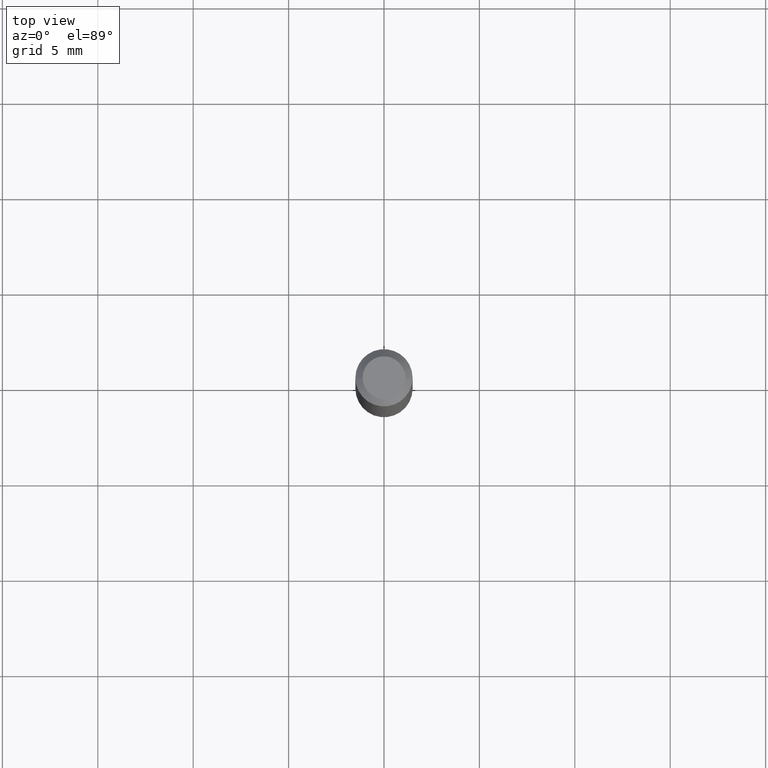
[diagram: clean part render]
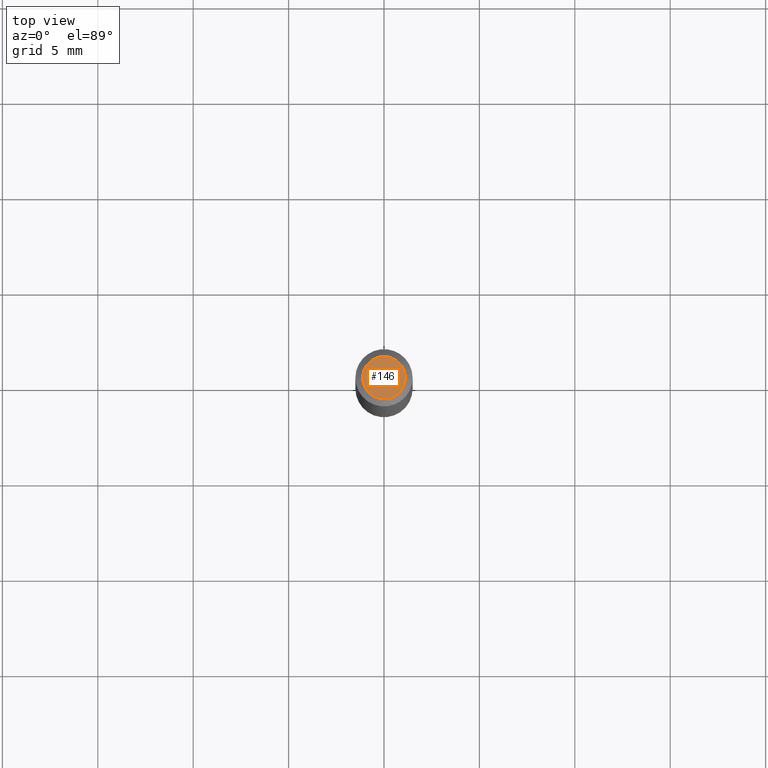
[diagram: same view with one face highlighted and labeled with its STEP entity id]
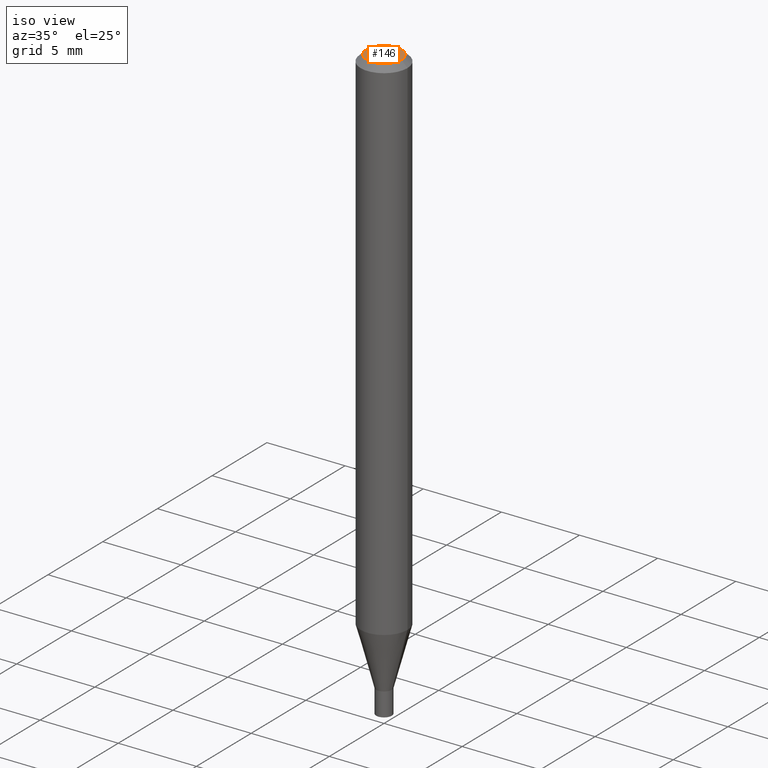
[diagram: same view with one face highlighted and labeled with its STEP entity id]
A machine part, top view. The second image highlights one B-rep face of the part: STEP entity #146.
A second angle (iso view) of the same face is appended — the face is thin or edge-on in the first view.
In plain terms, the highlighted planar face has unit normal (0, -0, -1).
Its self-contained STEP definition (entity closure, byte-faithful):
#55 = EDGE_CURVE ( 'NONE', #103, #127, #431, .T. ) ;
#85 = DIRECTION ( 'NONE',  ( 2.438088387897960049E-29, -3.491481338843145188E-15, -1.000000000000000000 ) ) ;
#90 = DIRECTION ( 'NONE',  ( -2.445468806185136597E-29, 3.491481338843145583E-15, 1.000000000000000000 ) ) ;
#92 = ORIENTED_EDGE ( 'NONE', *, *, #55, .T. ) ;
#103 = VERTEX_POINT ( 'NONE', #288 ) ;
#122 = CARTESIAN_POINT ( 'NONE',  ( -8.641182519006283330E-45, 1.233731848647590289E-30, 3.533548453838708869E-16 ) ) ;
#127 = VERTEX_POINT ( 'NONE', #176 ) ;
#128 = CARTESIAN_POINT ( 'NONE',  ( -8.641182519006283330E-45, 1.233731848647590289E-30, 3.533548453838708869E-16 ) ) ;
#129 = AXIS2_PLACEMENT_3D ( 'NONE', #387, #85, #399 ) ;
#146 = ADVANCED_FACE ( 'NONE', ( #313 ), #322, .F. ) ;
#169 = ORIENTED_EDGE ( 'NONE', *, *, #257, .T. ) ;
#176 = CARTESIAN_POINT ( 'NONE',  ( -0.04404999999999999888, 3.337856159934040055E-16, 3.533548453838686682E-16 ) ) ;
#217 = CIRCLE ( 'NONE', #423, 0.04404999999999999888 ) ;
#220 = DIRECTION ( 'NONE',  ( 1.000000000000000000, -6.982962677686265922E-15, 4.819687581474398999E-29 ) ) ;
#253 = DIRECTION ( 'NONE',  ( -2.445468806185136597E-29, 3.491481338843145583E-15, 1.000000000000000000 ) ) ;
#257 = EDGE_CURVE ( 'NONE', #127, #103, #217, .T. ) ;
#288 = CARTESIAN_POINT ( 'NONE',  ( 0.04404999999999999888, -3.798447818264454163E-16, 3.533548453838733521E-16 ) ) ;
#313 = FACE_OUTER_BOUND ( 'NONE', #336, .T. ) ;
#322 = PLANE ( 'NONE',  #129 ) ;
#336 = EDGE_LOOP ( 'NONE', ( #169, #92 ) ) ;
#387 = CARTESIAN_POINT ( 'NONE',  ( 3.075995059520799729E-16, 0.04404999999999999888, 2.287766971589489619E-17 ) ) ;
#390 = AXIS2_PLACEMENT_3D ( 'NONE', #122, #253, #393 ) ;
#393 = DIRECTION ( 'NONE',  ( 1.000000000000000000, -6.982962677686265922E-15, 4.819687581474398999E-29 ) ) ;
#399 = DIRECTION ( 'NONE',  ( -1.000000000000000000, 6.982962677686265922E-15, -4.876176775795935793E-29 ) ) ;
#423 = AXIS2_PLACEMENT_3D ( 'NONE', #128, #90, #220 ) ;
#431 = CIRCLE ( 'NONE', #390, 0.04404999999999999888 ) ;